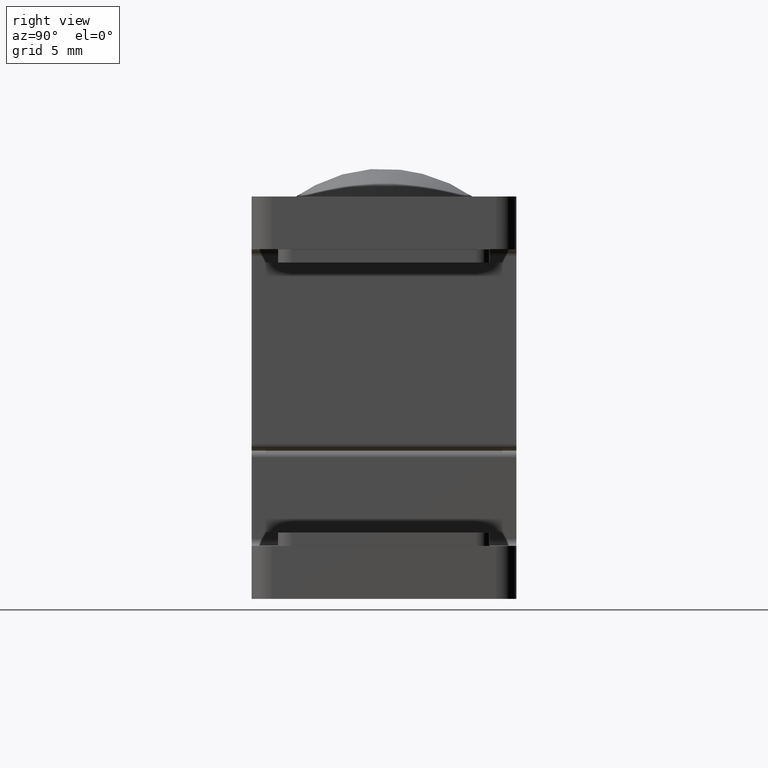
[diagram: clean part render]
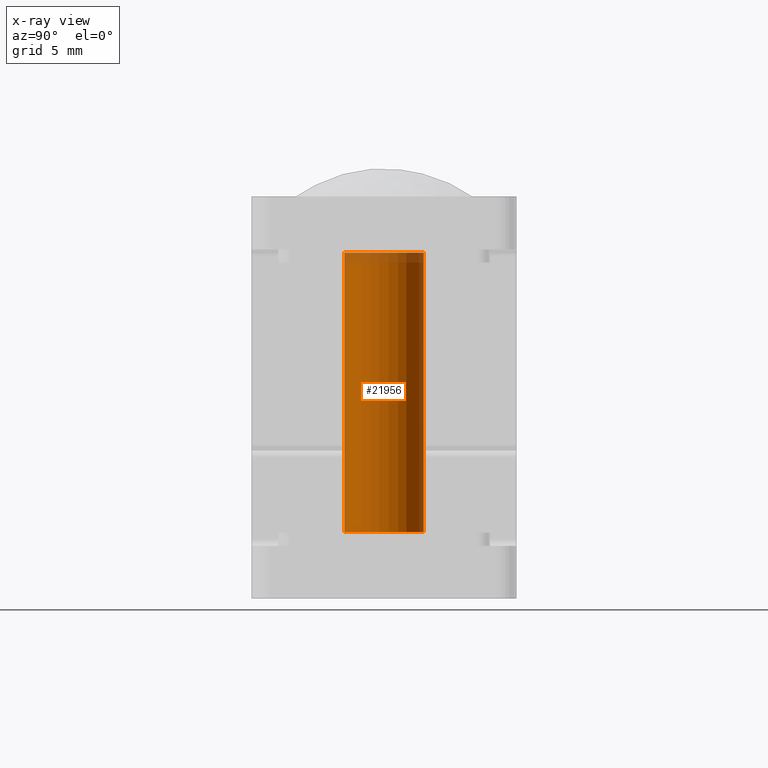
[diagram: x-ray — body ghosted, one internal face saturated and labeled with its STEP entity id]
A machine part, right view, then the same camera in x-ray: the body is ghosted and one INTERNAL B-rep face — a face not visible from any outside direction — is saturated and labeled: STEP entity #21956.
In plain terms, the highlighted cylindrical surface (bore or boss wall) has radius 3 mm, axis along (0, -0, 1).
Its self-contained STEP definition (entity closure, byte-faithful):
#164 = DIRECTION ( 'NONE',  ( 0.000000000000000000, 1.000000000000000000, 1.224646799147353207E-16 ) ) ;
#1944 = EDGE_CURVE ( 'NONE', #14881, #14881, #25624, .T. ) ;
#2896 = AXIS2_PLACEMENT_3D ( 'NONE', #10662, #16145, #164 ) ;
#3558 = ORIENTED_EDGE ( 'NONE', *, *, #21579, .T. ) ;
#5410 = CARTESIAN_POINT ( 'NONE',  ( 0.000000000000000000, -4.041334437186261072E-16, 3.299999999999997158 ) ) ;
#6508 = CIRCLE ( 'NONE', #16914, 2.999999999999996447 ) ;
#7301 = CYLINDRICAL_SURFACE ( 'NONE', #2896, 2.999999999999996447 ) ;
#7857 = CARTESIAN_POINT ( 'NONE',  ( 0.000000000000000000, -2.988138189919541323E-15, 24.39999999999999503 ) ) ;
#10662 = CARTESIAN_POINT ( 'NONE',  ( 0.000000000000000000, 0.000000000000000000, 0.000000000000000000 ) ) ;
#10821 = DIRECTION ( 'NONE',  ( -0.000000000000000000, 1.224646799147351975E-16, -1.000000000000000000 ) ) ;
#13273 = DIRECTION ( 'NONE',  ( -0.000000000000000000, 1.224646799147352961E-16, -1.000000000000000000 ) ) ;
#13336 = AXIS2_PLACEMENT_3D ( 'NONE', #5410, #13273, #18593 ) ;
#13609 = EDGE_LOOP ( 'NONE', ( #3558 ) ) ;
#14881 = VERTEX_POINT ( 'NONE', #19725 ) ;
#16145 = DIRECTION ( 'NONE',  ( -0.000000000000000000, 1.224646799147353207E-16, -1.000000000000000000 ) ) ;
#16592 = CARTESIAN_POINT ( 'NONE',  ( 0.000000000000000000, -2.999999999999999556, 24.39999999999999503 ) ) ;
#16914 = AXIS2_PLACEMENT_3D ( 'NONE', #7857, #10821, #23708 ) ;
#17337 = EDGE_LOOP ( 'NONE', ( #26498 ) ) ;
#18593 = DIRECTION ( 'NONE',  ( 0.000000000000000000, 1.000000000000000000, 1.445602896647341135E-16 ) ) ;
#19725 = CARTESIAN_POINT ( 'NONE',  ( 0.000000000000000000, 2.999999999999995559, 3.299999999999997158 ) ) ;
#20853 = FACE_OUTER_BOUND ( 'NONE', #17337, .T. ) ;
#21579 = EDGE_CURVE ( 'NONE', #24786, #24786, #6508, .T. ) ;
#21956 = ADVANCED_FACE ( 'NONE', ( #27865, #20853 ), #7301, .T. ) ;
#23708 = DIRECTION ( 'NONE',  ( 0.000000000000000000, -1.000000000000000000, 0.000000000000000000 ) ) ;
#24786 = VERTEX_POINT ( 'NONE', #16592 ) ;
#25624 = CIRCLE ( 'NONE', #13336, 2.999999999999996003 ) ;
#26498 = ORIENTED_EDGE ( 'NONE', *, *, #1944, .F. ) ;
#27865 = FACE_OUTER_BOUND ( 'NONE', #13609, .T. ) ;